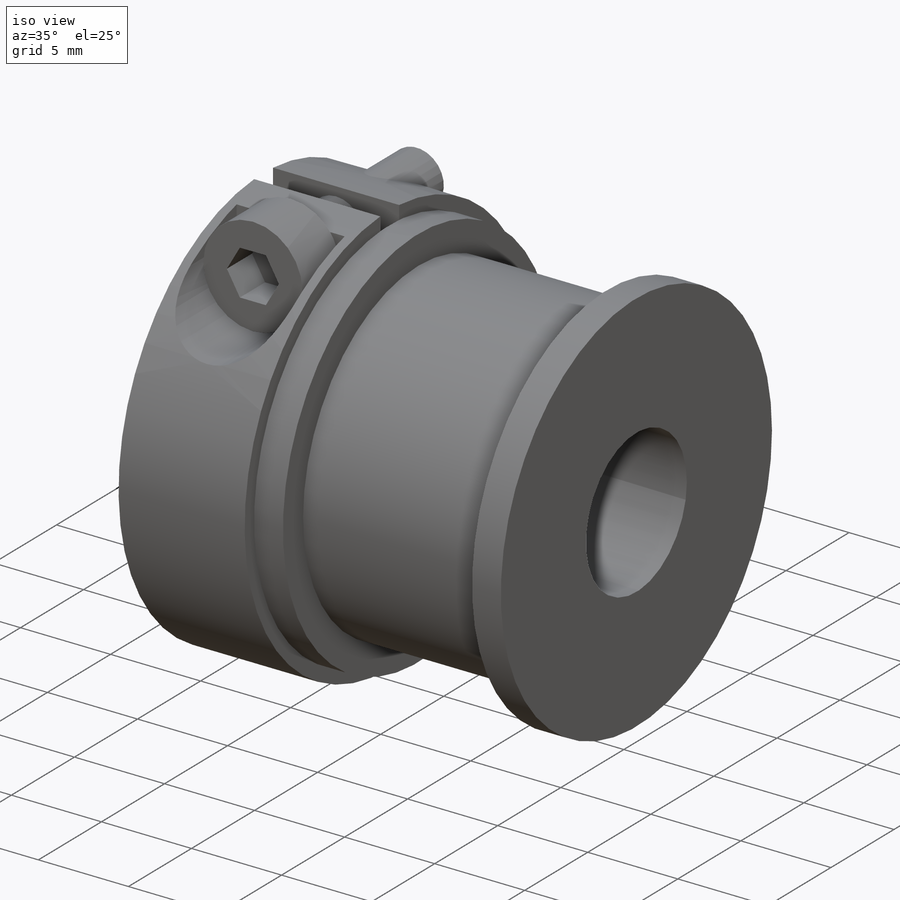
[diagram: iso view]
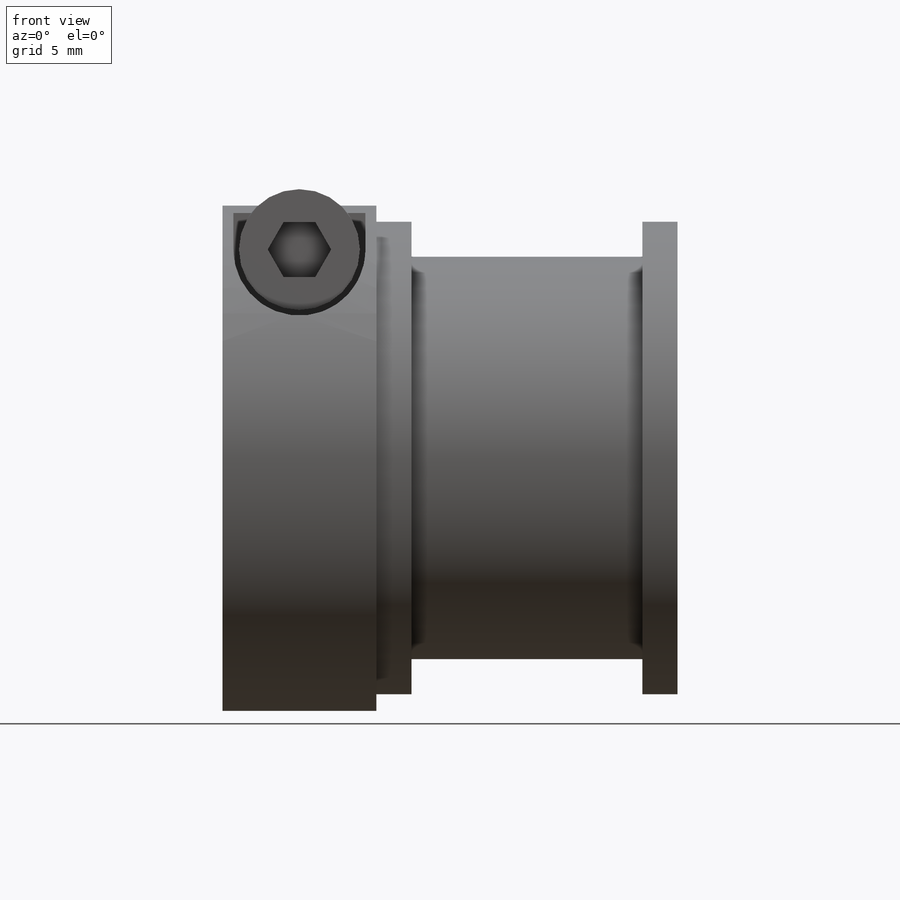
[diagram: front view]
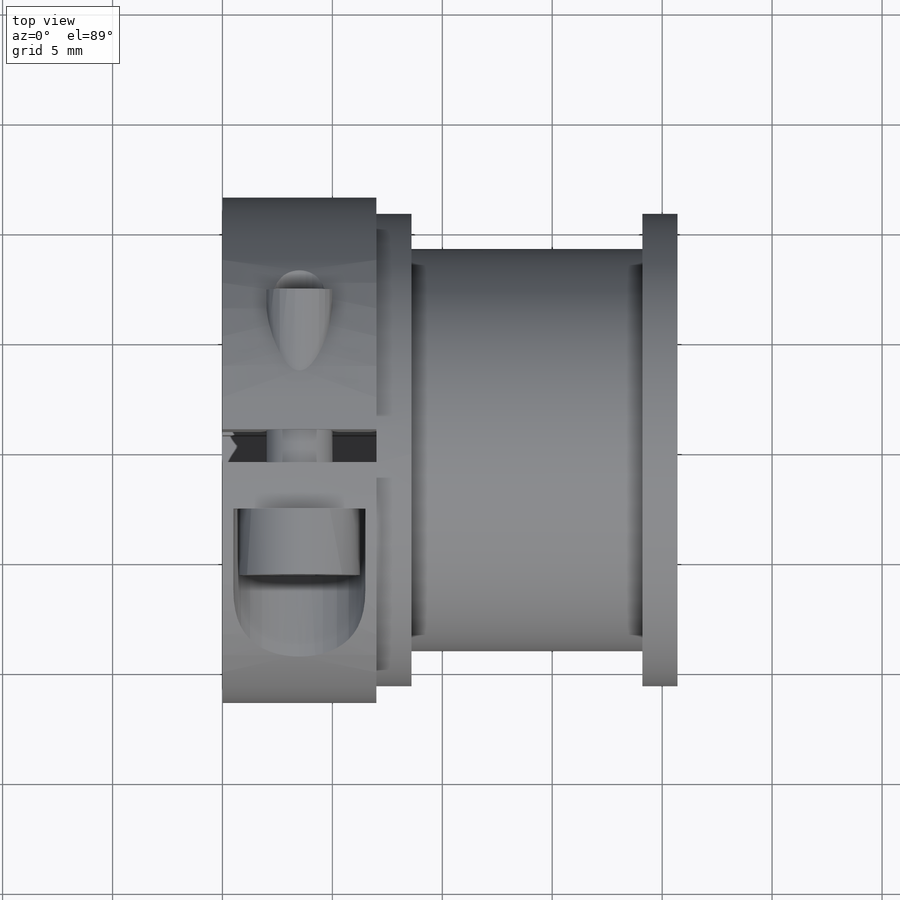
[diagram: top view]
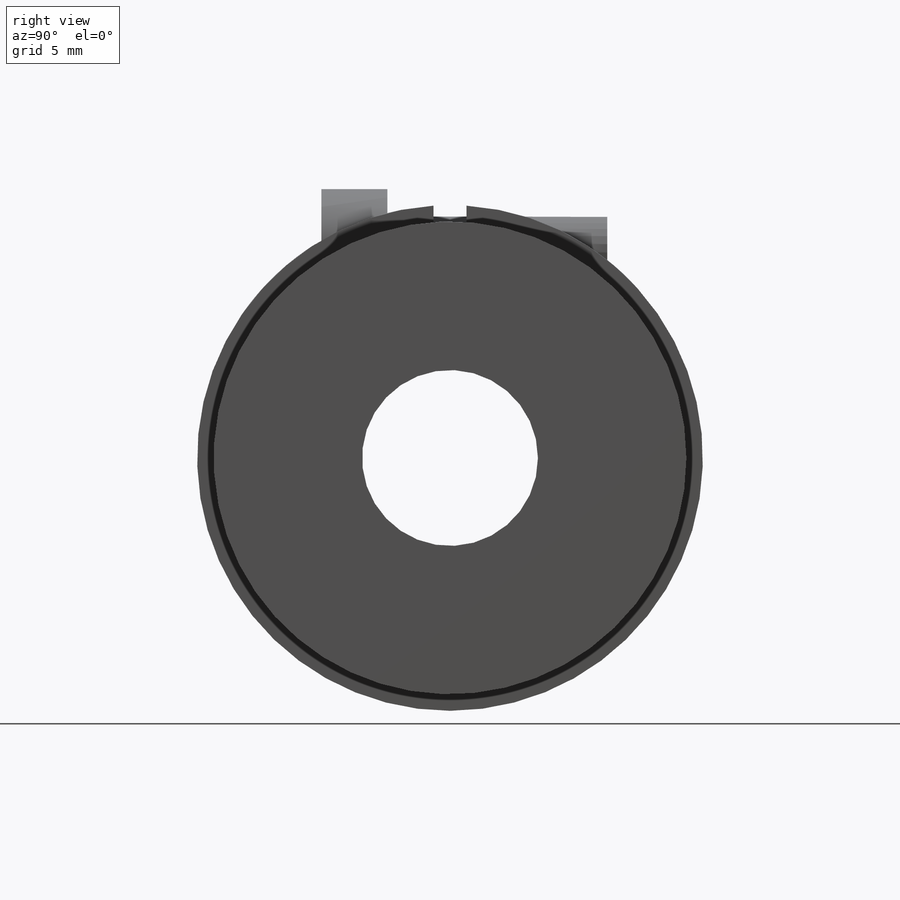
[diagram: right view]
SOLIDWORKS PART (.sldprt)
format: sldprt  version: not decoded by parser v0  size: 357,888 bytes
history: native  units: mm
features: sketch x10, cut_extrude x3, extrude x2, material x1, revolve x1, hole x1, thread x1 (+13 scaffold rows collapsed)
feature tree (32):
  scaffold x13  (default folders/planes/origin — collapsed)
  material  "6061-T6 (SS)"
  sketch  "Sketch1"  dims[c1.D1=8.0mm c1.D2=21.5mm c1.D3=18.3mm c1.D4=6.0mm c1.D5=20.7mm c1.D6=1.6mm c2.D4=13.7mm c2.D7=23.0mm]
  revolve  "Revolve1"  Angle=360deg
  sketch  "Sketch2"  dims[D1=19.0mm D2=10.0mm D5=1.5mm D6=10.0mm D7=5.0mm]
  sketch  "Sketch11"  dims[D1=10.0mm D5=0.01mm D6=1.0mm D7=5.0mm]
  sketch  "Sketch3"  dims[c1.D1=19.0mm c1.D2=10.0mm c2.D1=1.5mm]
  cut_extrude  "Cut-Extrude3"  [1 undecoded]
  sketch  "Sketch4"  dims[D1=6.0mm D2=2.0mm]
  cut_extrude  "Cut-Extrude1"  Depth=2.85mm
  hole  "M3x0.5 Tapped Hole1"  Diameter=2.5mm Depth=10.75mm
  sketch  "Sketch6"
  sketch  "Sketch5"  dims[hole-wizard template sketch: 60 standard entries collapsed; hole parameters kept: c18.Thru Tap Drill Depth=10.75mm]
  thread  "Hole Thread1"  Diameter=3mm  [1 undecoded]
  sketch  "Sketch8"  dims[D1=3.0mm]
  extrude  "Boss-Extrude2"  Depth=10mm
  sketch  "Sketch7"  dims[D1=5.5mm]
  extrude  "Boss-Extrude1"  Depth=3mm
  sketch  "Sketch9"  dims[D1=2.5mm]
  cut_extrude  "Cut-Extrude2"  Depth=2mm
decode coverage: 16 of 18 modeling features carry decoded parameters
note: ~ marks probable driven/reference dimensions
note: 2 parameter values undecoded
note: suppression state not decoded; provenance and decode notes live in map.json
